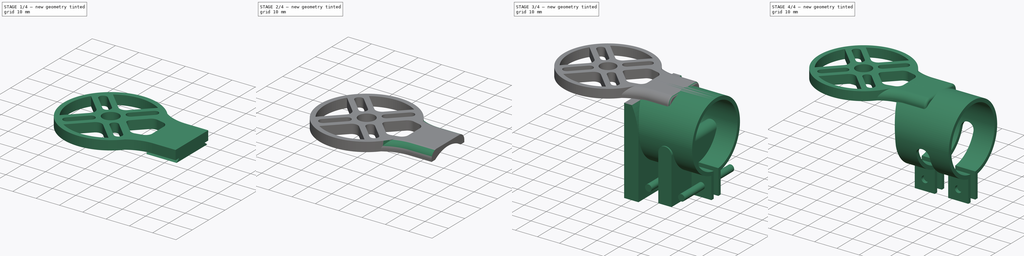
[diagram: build sequence overview — one tinted view per stage of 4, left to right]
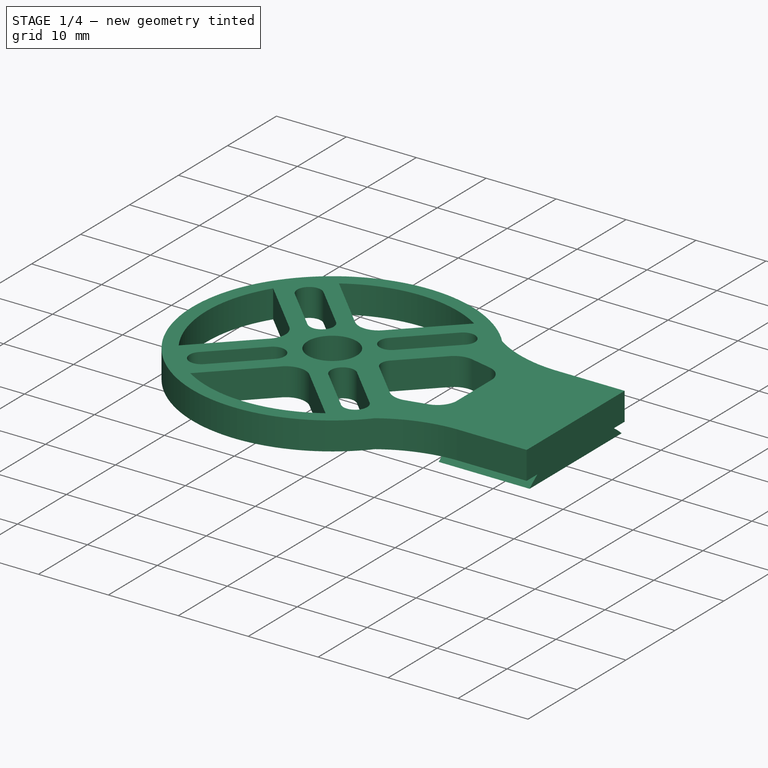
[diagram: stage 1 of 4 — iso view after this stage's code; geometry added in this stage tinted green]
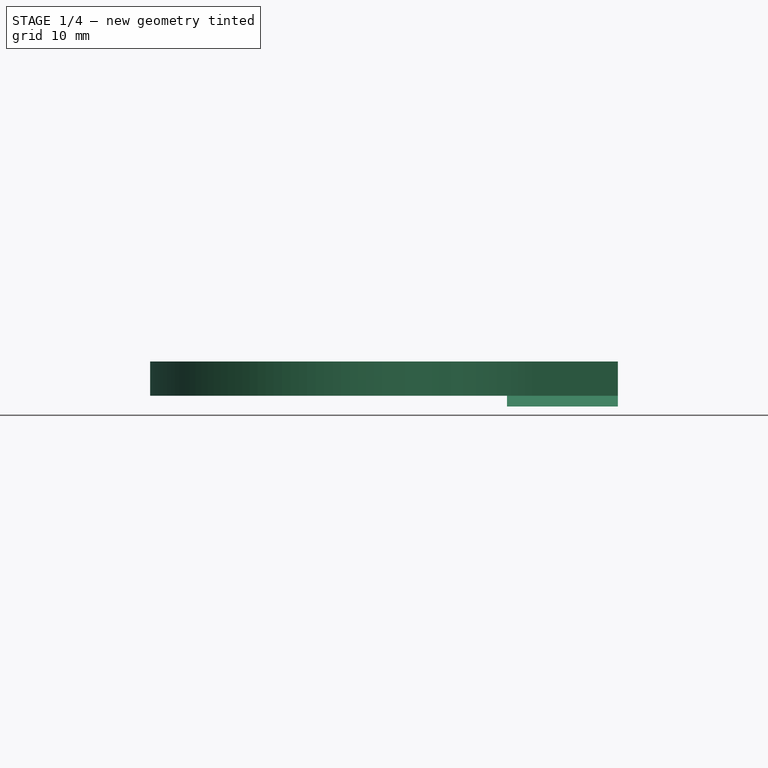
[diagram: stage 1 of 4 — front view after this stage's code; geometry added in this stage tinted green]
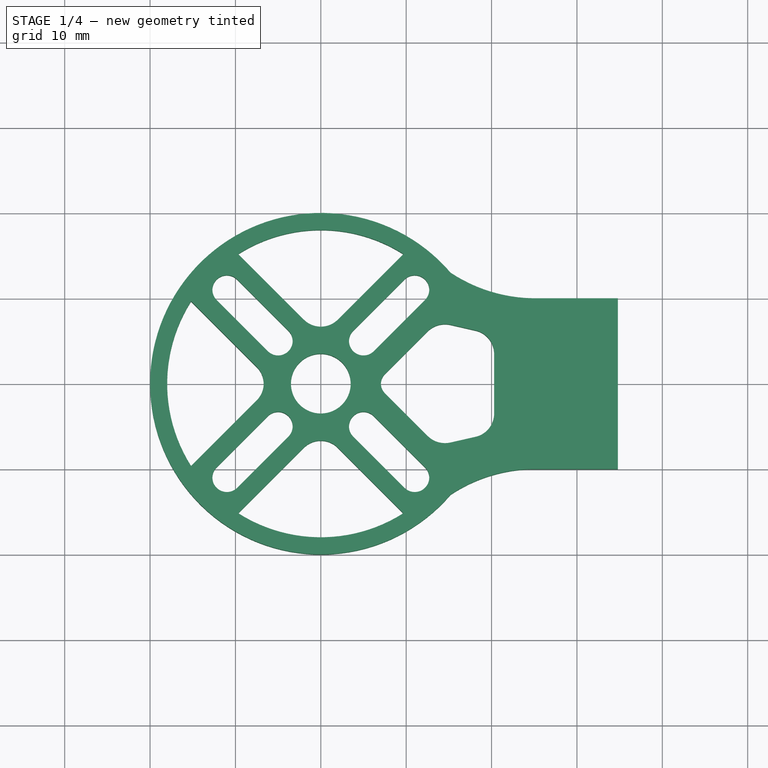
[diagram: stage 1 of 4 — top view after this stage's code; geometry added in this stage tinted green]
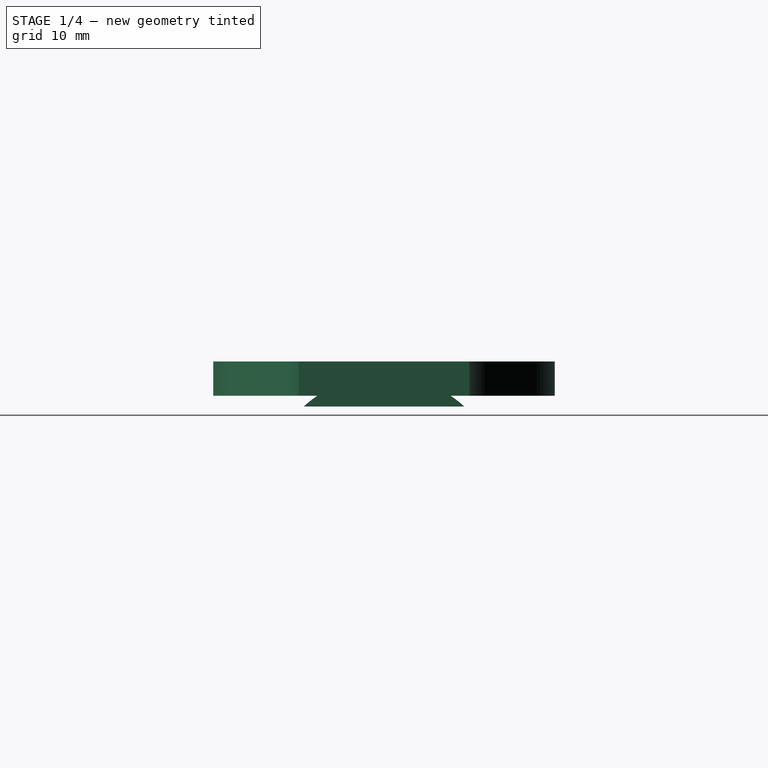
[diagram: stage 1 of 4 — right view after this stage's code; geometry added in this stage tinted green]
FCSTD DOCUMENT  (FreeCAD 0.16R6700 (Git))
Label: motor_mount
License: All rights reserved
LicenseURL: http://en.wikipedia.org/wiki/All_rights_reserved
objects: Sketcher::SketchObject×4, Part::Extrusion×4, Part::Cut×2, Part::Fillet×2, Part::MultiFuse×1
note: 13 computed .brp shape members not serialized (recipe doc carries the construction recipe); baked Part::Feature solids carry a one-line shape summary decoded from their .brp

FEATURE [Sketcher::SketchObject] Sketch002  label="Cutout_Sketch"
  Placement = pos=(34.8013,0,0) rot=(0.57735,0.57735,0.57735;2.0944rad)
  sketch-geometry (3):
    g0: LineSegment [constr] StartX=0 StartY=4 StartZ=0 EndX=0 EndY=-11.5 EndZ=0
    g1: ArcOfCircle CenterX=0 CenterY=-11.5 CenterZ=0 NormalX=0 NormalY=0 NormalZ=1 Radius=13.9 StartAngle=0.828429 EndAngle=2.31316
    g2: LineSegment StartX=-9.39688 StartY=-1.2575 StartZ=0 EndX=9.39688 EndY=-1.2575 EndZ=0
  constraints (9):
    c: PointOnObject(g0,g-2)
    c: Vertical(g0)
    c: Distance(g0) = 15.5
    c: Coincident(g1,g0)
    c: Symmetric(g1,g1,g0)
    c: Radius(g1) = 13.9
    c: Coincident(g2,g1)
    c: Coincident(g2,g1)
    c: DistanceY(g0,g-1) = 11.5
FEATURE [Part::Extrusion] Extrude  label="Motor_Base_Extrude"
  Base = -> Sketch
  Dir = (0,0,4)
  Solid = true
FEATURE [Part::Extrusion] Extrude003  label="Cutout_Extrude"
  Base = -> Sketch002
  Dir = (-13,0,0)
  Solid = true
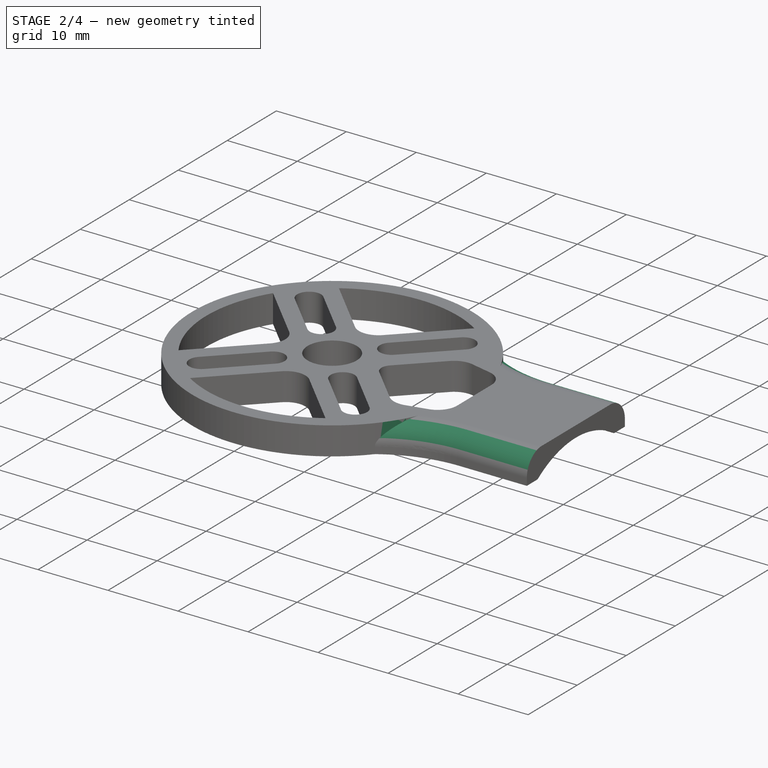
[diagram: stage 2 of 4 — iso view after this stage's code; geometry added in this stage tinted green]
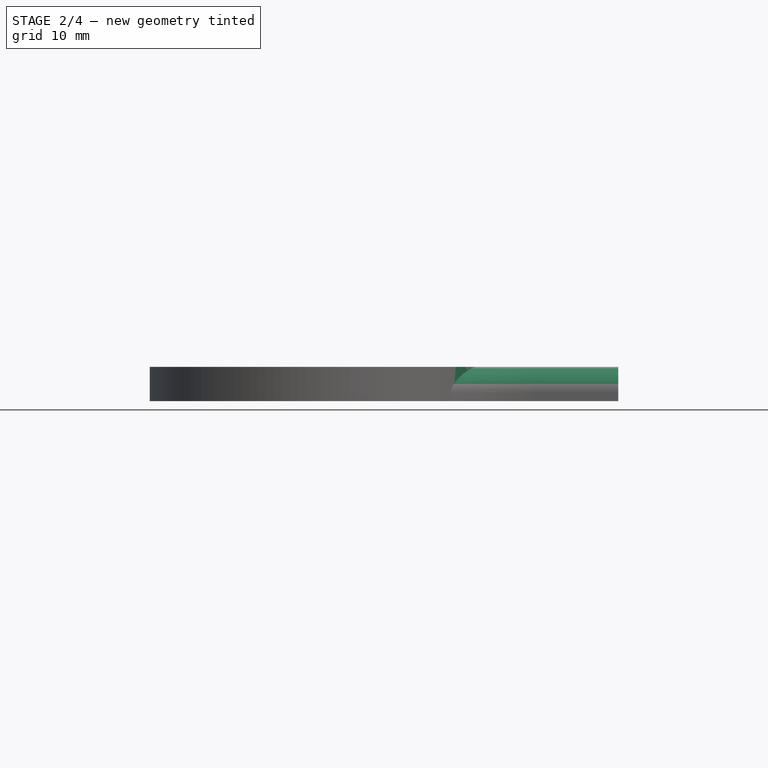
[diagram: stage 2 of 4 — front view after this stage's code; geometry added in this stage tinted green]
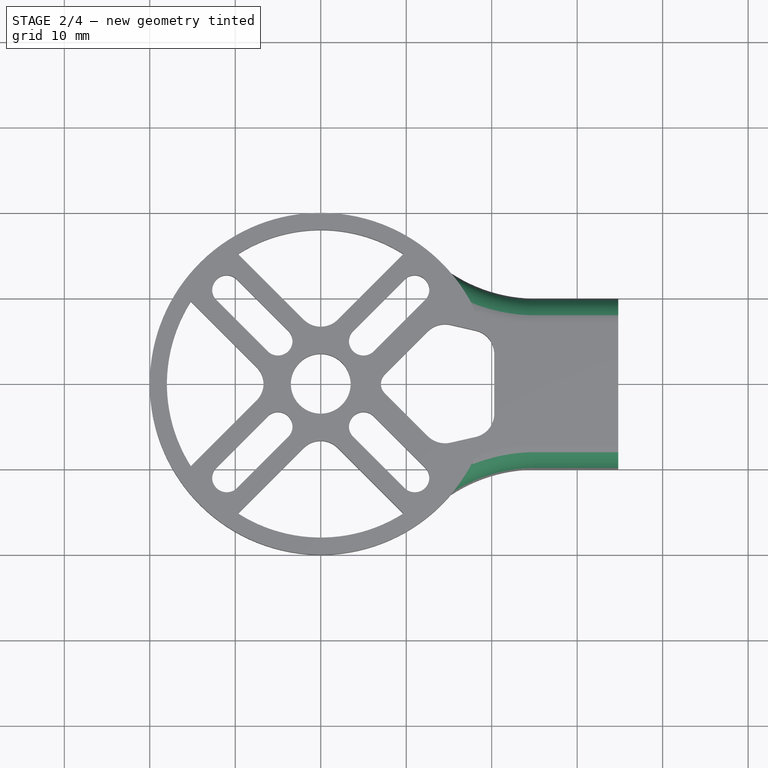
[diagram: stage 2 of 4 — top view after this stage's code; geometry added in this stage tinted green]
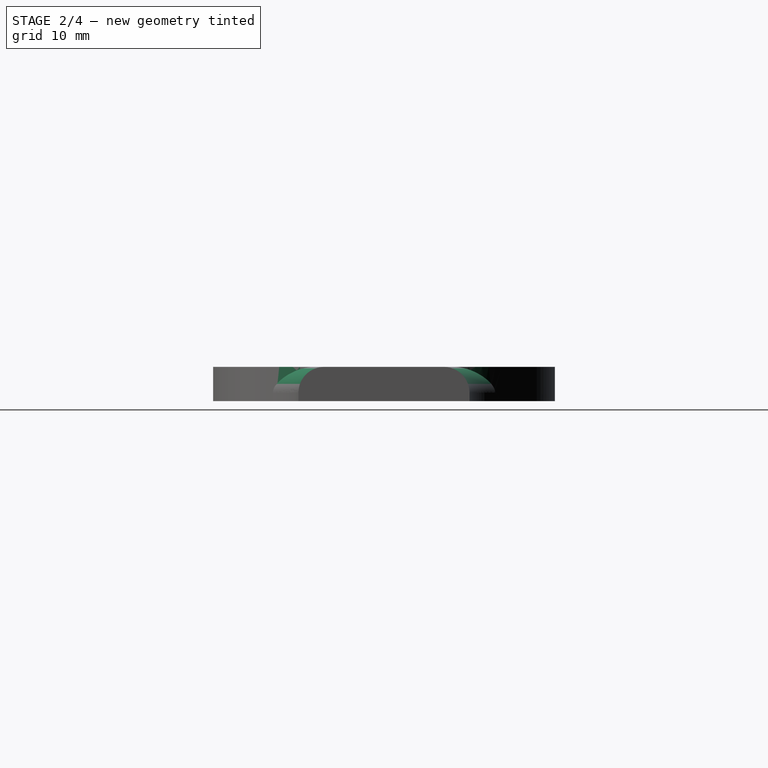
[diagram: stage 2 of 4 — right view after this stage's code; geometry added in this stage tinted green]
FEATURE [Part::Cut] Cut  label="Motor_Base_Cut"
  Base = -> Extrude
  Tool = -> Extrude003
FEATURE [Part::Fillet] Fillet
  Base = -> Cut
  Edges = 2 edges r=3: [Edge57,Edge59]
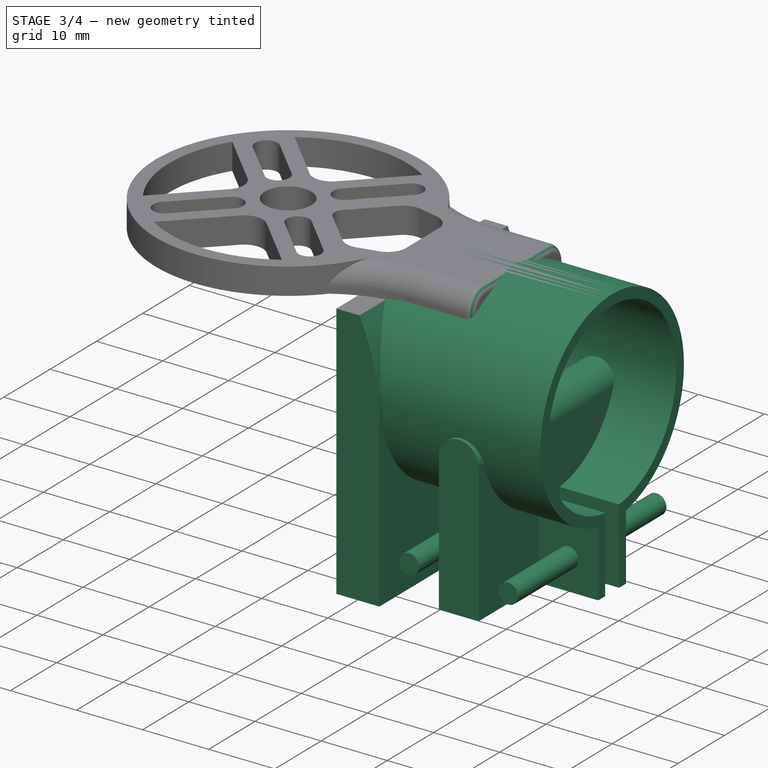
[diagram: stage 3 of 4 — iso view after this stage's code; geometry added in this stage tinted green]
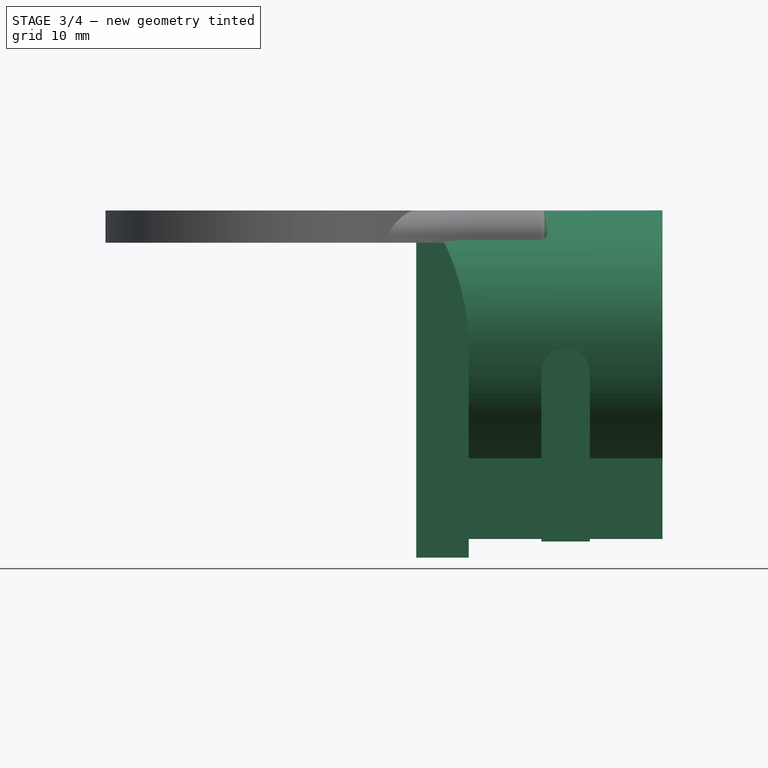
[diagram: stage 3 of 4 — front view after this stage's code; geometry added in this stage tinted green]
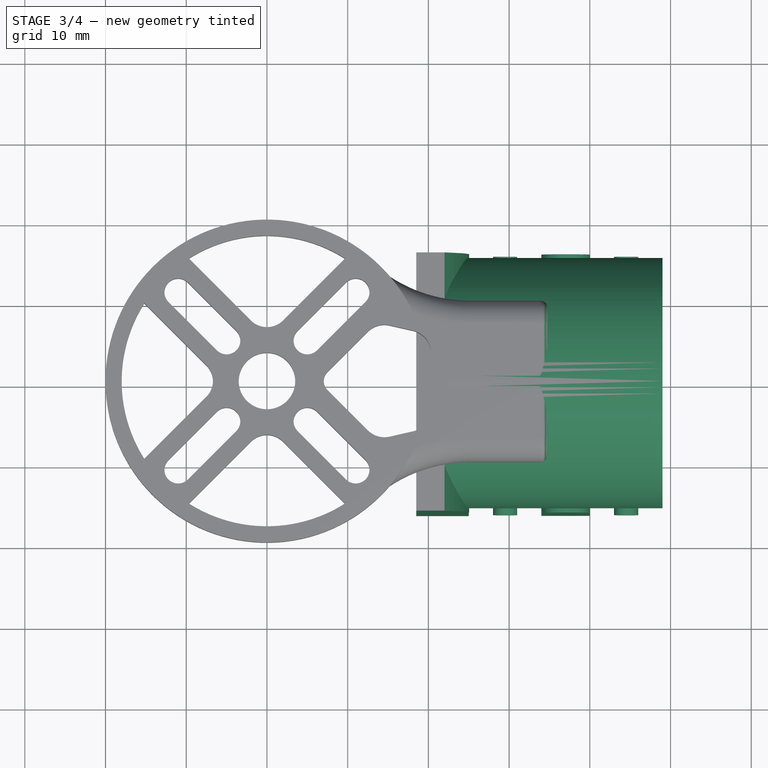
[diagram: stage 3 of 4 — top view after this stage's code; geometry added in this stage tinted green]
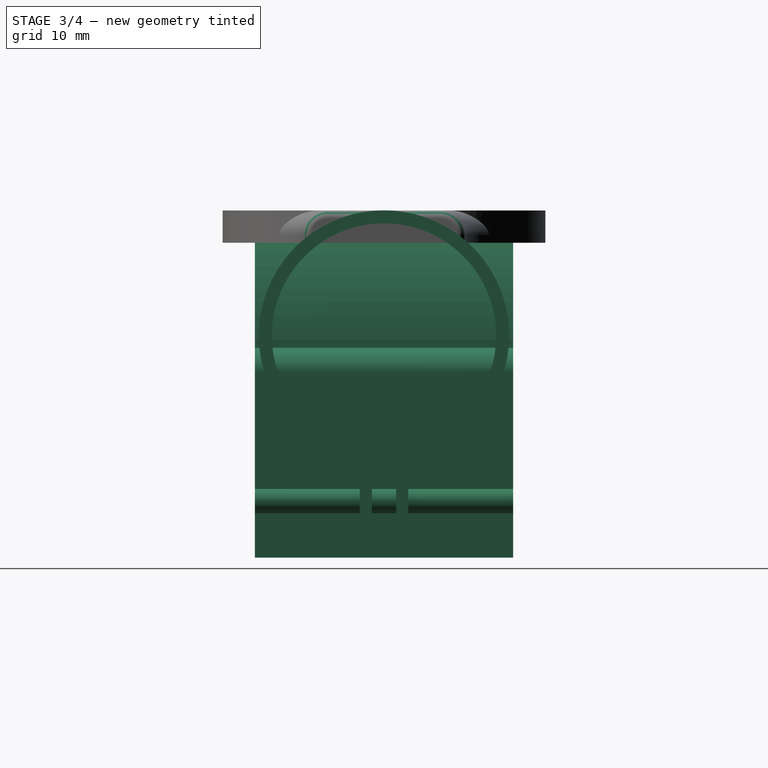
[diagram: stage 3 of 4 — right view after this stage's code; geometry added in this stage tinted green]
FEATURE [Sketcher::SketchObject] Sketch  label="Motor_Base_Sketch"
  sketch-geometry (62):
    g0: LineSegment [constr] StartX=-11 StartY=11 StartZ=0 EndX=11 EndY=11 EndZ=0
    g1: LineSegment [constr] StartX=11 StartY=11 StartZ=0 EndX=11 EndY=-11 EndZ=0
    g2: LineSegment [constr] StartX=11 StartY=-11 StartZ=0 EndX=-11 EndY=-11 EndZ=0
    g3: LineSegment [constr] StartX=-11 StartY=-11 StartZ=0 EndX=-11 EndY=11 EndZ=0
    g4: LineSegment [constr] StartX=-5 StartY=5 StartZ=0 EndX=5 EndY=5 EndZ=0
    g5: LineSegment [constr] StartX=5 StartY=5 StartZ=0 EndX=5 EndY=-5 EndZ=0
    g6: LineSegment [constr] StartX=5 StartY=-5 StartZ=0 EndX=-5 EndY=-5 EndZ=0
    g7: LineSegment [constr] StartX=-5 StartY=-5 StartZ=0 EndX=-5 EndY=5 EndZ=0
    g8: ArcOfCircle CenterX=5 CenterY=5 CenterZ=0 NormalX=0 NormalY=0 NormalZ=1 Radius=1.7 StartAngle=2.35619 EndAngle=5.49779
    g9: ArcOfCircle CenterX=11 CenterY=11 CenterZ=0 NormalX=0 NormalY=0 NormalZ=1 Radius=1.7 StartAngle=5.49779 EndAngle=8.63938
    g10: LineSegment StartX=6.20208 StartY=3.79792 StartZ=0 EndX=12.2021 EndY=9.79792 EndZ=0
    g11: LineSegment StartX=3.79792 StartY=6.20208 StartZ=0 EndX=9.79792 EndY=12.2021 EndZ=0
    g12: ArcOfCircle CenterX=-5 CenterY=5 CenterZ=0 NormalX=0 NormalY=0 NormalZ=1 Radius=1.7 StartAngle=3.92699 EndAngle=7.06858
    g13: ArcOfCircle CenterX=-11 CenterY=11 CenterZ=0 NormalX=0 NormalY=0 NormalZ=1 Radius=1.7 StartAngle=0.785398 EndAngle=3.92699
    g14: LineSegment StartX=-3.79792 StartY=6.20208 StartZ=0 EndX=-9.79792 EndY=12.2021 EndZ=0
    g15: LineSegment StartX=-6.20208 StartY=3.79792 StartZ=0 EndX=-12.2021 EndY=9.79792 EndZ=0
    g16: ArcOfCircle CenterX=-5 CenterY=-5 CenterZ=0 NormalX=0 NormalY=0 NormalZ=1 Radius=1.7 StartAngle=5.49779 EndAngle=8.63938
    g17: ArcOfCircle CenterX=-11 CenterY=-11 CenterZ=0 NormalX=0 NormalY=0 NormalZ=1 Radius=1.7 StartAngle=2.35619 EndAngle=5.49779
    g18: LineSegment StartX=-6.20208 StartY=-3.79792 StartZ=0 EndX=-12.2021 EndY=-9.79792 EndZ=0
    g19: LineSegment StartX=-3.79792 StartY=-6.20208 StartZ=0 EndX=-9.79792 EndY=-12.2021 EndZ=0
    g20: ArcOfCircle CenterX=5 CenterY=-5 CenterZ=0 NormalX=0 NormalY=0 NormalZ=1 Radius=1.7 StartAngle=0.785398 EndAngle=3.92699
    g21: ArcOfCircle CenterX=11 CenterY=-11 CenterZ=0 NormalX=0 NormalY=0 NormalZ=1 Radius=1.7 StartAngle=3.92699 EndAngle=7.06858
    g22: LineSegment StartX=3.79792 StartY=-6.20208 StartZ=0 EndX=9.79792 EndY=-12.2021 EndZ=0
    g23: LineSegment StartX=6.20208 StartY=-3.79792 StartZ=0 EndX=12.2021 EndY=-9.79792 EndZ=0
    g24: Circle CenterX=0 CenterY=0 CenterZ=0 NormalX=0 NormalY=0 NormalZ=1 Radius=3.5
    g25: LineSegment StartX=-15.1987 StartY=9.64365 StartZ=0 EndX=-7.5 EndY=1.94497 EndZ=0
    g26: LineSegment StartX=-15.1987 StartY=-9.64365 StartZ=0 EndX=-7.5 EndY=-1.94497 EndZ=0
    g27: ArcOfCircle CenterX=-9.44497 CenterY=0 CenterZ=0 NormalX=0 NormalY=0 NormalZ=1 Radius=2.7506 StartAngle=5.49779 EndAngle=7.06858
    g28: LineSegment [constr] StartX=-7.5 StartY=7.5 StartZ=0 EndX=7.5 EndY=7.5 EndZ=0
    g29: LineSegment [constr] StartX=7.5 StartY=7.5 StartZ=0 EndX=7.5 EndY=-7.5 EndZ=0
    g30: LineSegment [constr] StartX=7.5 StartY=-7.5 StartZ=0 EndX=-7.5 EndY=-7.5 EndZ=0
    g31: LineSegment [constr] StartX=-7.5 StartY=-7.5 StartZ=0 EndX=-7.5 EndY=7.5 EndZ=0
    g32: LineSegment [constr] StartX=-15.1987 StartY=13 StartZ=0 EndX=24.8013 EndY=13 EndZ=0
    g33: LineSegment [constr] StartX=24.8013 StartY=-13 StartZ=0 EndX=-15.1987 EndY=-13 EndZ=0
    g34: LineSegment [constr] StartX=-15.1987 StartY=-13 StartZ=0 EndX=-15.1987 EndY=13 EndZ=0
    g35: ArcOfCircle CenterX=0 CenterY=0 CenterZ=0 NormalX=0 NormalY=0 NormalZ=1 Radius=20 StartAngle=0.707584 EndAngle=5.5756
    g36: ArcOfCircle CenterX=0 CenterY=0 CenterZ=0 NormalX=0 NormalY=0 NormalZ=1 Radius=18 StartAngle=2.57619 EndAngle=3.707
    g37: ArcOfCircle CenterX=25.1538 CenterY=27.9965 CenterZ=0 NormalX=0 NormalY=0 NormalZ=1 Radius=18 StartAngle=4.12636 EndAngle=4.69281
    g38: ArcOfCircle CenterX=25.1538 CenterY=-27.9965 CenterZ=0 NormalX=0 NormalY=0 NormalZ=1 Radius=18 StartAngle=1.59038 EndAngle=2.15683
    g39: LineSegment [constr] StartX=24.8013 StartY=13 StartZ=0 EndX=24.8013 EndY=-13 EndZ=0
    g40: LineSegment StartX=24.8013 StartY=10 StartZ=0 EndX=34.8013 EndY=10 EndZ=0
    g41: LineSegment StartX=34.8013 StartY=10 StartZ=0 EndX=34.8013 EndY=-10 EndZ=0
    g42: LineSegment StartX=34.8013 StartY=-10 StartZ=0 EndX=24.8013 EndY=-10 EndZ=0
    g43: ArcOfCircle CenterX=0 CenterY=0 CenterZ=0 NormalX=0 NormalY=0 NormalZ=1 Radius=18 StartAngle=4.14516 EndAngle=5.27962
    g44: LineSegment StartX=-9.67139 StartY=-15.181 StartZ=0 EndX=-1.99035 EndY=-7.5 EndZ=0
    g45: LineSegment StartX=9.67139 StartY=-15.181 StartZ=0 EndX=1.99035 EndY=-7.5 EndZ=0
    g46: ArcOfCircle CenterX=0 CenterY=-9.49035 CenterZ=0 NormalX=0 NormalY=0 NormalZ=1 Radius=2.81478 StartAngle=0.785398 EndAngle=2.35619
    g47: ArcOfCircle CenterX=0 CenterY=0 CenterZ=0 NormalX=0 NormalY=0 NormalZ=1 Radius=18 StartAngle=1.00356 EndAngle=2.13803
    g48: LineSegment StartX=-9.67139 StartY=15.181 StartZ=0 EndX=-1.99035 EndY=7.5 EndZ=0
    g49: LineSegment StartX=9.67139 StartY=15.181 StartZ=0 EndX=1.99035 EndY=7.5 EndZ=0
    g50: ArcOfCircle CenterX=0 CenterY=9.49035 CenterZ=0 NormalX=0 NormalY=0 NormalZ=1 Radius=2.81478 StartAngle=3.92699 EndAngle=5.49779
    g51: LineSegment StartX=7.5 StartY=1.11637 StartZ=0 EndX=12.5035 EndY=6.11989 EndZ=0
    g52: LineSegment StartX=15.1987 StartY=6.89675 StartZ=0 EndX=18.1236 EndY=6.22996 EndZ=0
    g53: LineSegment StartX=20.3013 StartY=3.5 StartZ=0 EndX=20.3013 EndY=-3.5 EndZ=0
    g54: LineSegment StartX=18.1236 StartY=-6.22996 StartZ=0 EndX=15.1987 EndY=-6.89675 EndZ=0
    g55: LineSegment StartX=12.5035 StartY=-6.11989 StartZ=0 EndX=7.5 EndY=-1.11637 EndZ=0
    g56: LineSegment [constr] StartX=15.1987 StartY=13 StartZ=0 EndX=15.1987 EndY=-13 EndZ=0
    g57: ArcOfCircle CenterX=8.61637 CenterY=0 CenterZ=0 NormalX=0 NormalY=0 NormalZ=1 Radius=1.57879 StartAngle=2.35619 EndAngle=3.92699
    g58: ArcOfCircle CenterX=14.5541 CenterY=4.06928 CenterZ=0 NormalX=0 NormalY=0 NormalZ=1 Radius=2.9 StartAngle=1.34666 EndAngle=2.35619
    g59: ArcOfCircle CenterX=17.5013 CenterY=3.5 CenterZ=0 NormalX=0 NormalY=0 NormalZ=1 Radius=2.8 StartAngle=0 EndAngle=1.34666
    g60: ArcOfCircle CenterX=17.5013 CenterY=-3.5 CenterZ=0 NormalX=0 NormalY=0 NormalZ=1 Radius=2.8 StartAngle=4.93652 EndAngle=6.28319
    g61: ArcOfCircle CenterX=14.5541 CenterY=-4.06928 CenterZ=0 NormalX=0 NormalY=0 NormalZ=1 Radius=2.9 StartAngle=3.92699 EndAngle=4.93652
  constraints (158):
    c: Coincident(g0,g1)
    c: Coincident(g1,g2)
    c: Coincident(g2,g3)
    c: Coincident(g3,g0)
    c: Horizontal(g0)
    c: Horizontal(g2)
    c: Vertical(g1)
    c: Vertical(g3)
    c: Coincident(g4,g5)
    c: Coincident(g5,g6)
    c: Coincident(g6,g7)
    c: Coincident(g7,g4)
    c: Horizontal(g4)
    c: Horizontal(g6)
    c: Vertical(g5)
    c: Vertical(g7)
    c: Tangent(g8,g11) = 1.5708
    c: Tangent(g8,g10) = -1.5708
    c: Tangent(g10,g9) = -1.5708
    c: Tangent(g11,g9) = 1.5708
    c: Equal(g8,g9)
    c: Coincident(g8,g4)
    c: Coincident(g9,g0)
    c: Tangent(g12,g15) = 1.5708
    c: Tangent(g12,g14) = -1.5708
    c: Tangent(g14,g13) = -1.5708
    c: Tangent(g15,g13) = 1.5708
    c: Equal(g12,g13)
    c: Coincident(g12,g4)
    c: Coincident(g13,g0)
    c: Tangent(g16,g19) = 1.5708
    c: Tangent(g16,g18) = -1.5708
    c: Tangent(g18,g17) = -1.5708
    c: Tangent(g19,g17) = 1.5708
    c: Equal(g16,g17)
    c: Coincident(g16,g6)
    c: Coincident(g17,g2)
    c: Equal(g12,g16)
    c: Equal(g16,g8)
    c: Tangent(g20,g23) = 1.5708
    c: Tangent(g20,g22) = -1.5708
    c: Tangent(g22,g21) = -1.5708
    c: Tangent(g23,g21) = 1.5708
    c: Equal(g20,g21)
    c: Coincident(g20,g5)
    c: Coincident(g21,g1)
    c: Equal(g20,g16)
    c: Radius(g21) = 1.7
    c: Symmetric(g0,g0,g-2)
    c: Symmetric(g4,g4,g-2)
    c: Symmetric(g4,g6,g-1)
    c: Symmetric(g0,g2,g-1)
    c: Coincident(g24,g-1)
    c: Radius(g24) = 3.5
    c: Equal(g7,g4)
    c: Equal(g3,g0)
    c: Distance(g4) = 10
    c: Distance(g0) = 22
    c: Tangent(g25,g27) = 1.5708
    c: Tangent(g26,g27) = -1.5708
    c: Coincident(g28,g29)
    c: Coincident(g29,g30)
    c: Coincident(g30,g31)
    c: Coincident(g31,g28)
    c: Horizontal(g28)
    c: Horizontal(g30)
    c: Vertical(g29)
    c: Symmetric(g28,g30,g-1)
    c: Symmetric(g29,g30,g-2)
    c: Distance(g28) = 15
    c: PointOnObject(g25,g31)
    c: PointOnObject(g26,g31)
    c: Coincident(g33,g34)
    c: Coincident(g34,g32)
    c: Horizontal(g32)
    c: Horizontal(g33)
    c: Vertical(g34)
    c: PointOnObject(g27,g-1)
    c: Parallel(g26,g18)
    c: Equal(g28,g31)
    c: Coincident(g35,g-1)
    c: PointOnObject(g35,g32)
    c: PointOnObject(g35,g33)
    c: Radius(g35) = 20
    c: Coincident(g36,g-1)
    c: Symmetric(g26,g25,g-1)
    c: PointOnObject(g36,g34)
    c: Symmetric(g36,g36,g-1)
    c: PointOnObject(g32,g35)
    c: Coincident(g36,g25)
    c: Coincident(g37,g35)
    c: Radius(g37) = 18
    c: Distance(g32) = 40
    c: PointOnObject(g33,g35)
    c: DistanceY(g34,g34) = 26
    c: Radius(g36) = 18
    c: Coincident(g38,g35)
    c: Symmetric(g38,g37,g-1)
    c: Equal(g38,g37)
    c: Coincident(g39,g32)
    c: Coincident(g39,g33)
    c: Vertical(g39)
    c: PointOnObject(g37,g39)
    c: Coincident(g40,g37)
    c: Horizontal(g40)
    c: Coincident(g41,g40)
    c: Vertical(g41)
    c: Coincident(g42,g41)
    c: Coincident(g42,g38)
    c: Horizontal(g42)
    c: Distance(g42) = 10
    c: Distance(g41) = 20
    c: Symmetric(g43,g43,g-2)
    c: Radius(g43) = 18
    c: Coincident(g43,g-1)
    c: Angle(g43) = 1.13446
    c: Coincident(g44,g43)
    c: Coincident(g45,g43)
    c: Tangent(g44,g46) = 1.5708
    c: Tangent(g45,g46) = -1.5708
    c: PointOnObject(g44,g30)
    c: Parallel(g44,g19)
    c: Symmetric(g45,g44,g-2)
    c: Coincident(g47,g-1)
    c: Equal(g47,g43)
    c: Coincident(g48,g47)
    c: Coincident(g49,g47)
    c: Parallel(g48,g14)
    c: Symmetric(g47,g47,g-2)
    c: Tangent(g48,g50) = -1.5708
    c: Tangent(g49,g50) = 1.5708
    c: PointOnObject(g48,g28)
    c: Angle(g47) = 1.13446
    c: PointOnObject(g49,g28)
    c: Parallel(g55,g23)
    c: Coincident(g56,g35)
    c: Coincident(g56,g35)
    c: Tangent(g55,g57) = 1.5708
    c: Tangent(g51,g57) = 1.5708
    c: PointOnObject(g55,g29)
    c: Symmetric(g51,g55,g-1)
    c: Tangent(g51,g58) = 1.5708
    c: Tangent(g52,g58) = 1.5708
    c: Tangent(g52,g59) = 1.5708
    c: Tangent(g53,g59) = 1.5708
    c: Tangent(g53,g60) = 1.5708
    c: Tangent(g54,g60) = 1.5708
    c: Tangent(g54,g61) = 1.5708
    c: Tangent(g55,g61) = 1.5708
    c: PointOnObject(g52,g56)
    c: Symmetric(g54,g52,g-1)
    c: Symmetric(g53,g53,g-1)
    c: Distance(g53) = 7
    c: Distance(g53,g39) = 4.5
    c: Distance(g54) = 3
    c: Symmetric(g54,g52,g-1)
    c: Radius(g60) = 2.8
    c: Radius(g61) = 2.9
FEATURE [Sketcher::SketchObject] Sketch001  label="Bracket_Sketch"
  Placement = pos=(25,0,0) rot=(0.57735,0.57735,0.57735;2.0944rad)
  expr: Placement.Base.x = 25
  sketch-geometry (8):
    g0: ArcOfCircle CenterX=0 CenterY=-11.484 CenterZ=0 NormalX=0 NormalY=0 NormalZ=1 Radius=15.5 StartAngle=4.90717 EndAngle=10.8008
    g1: ArcOfCircle CenterX=0 CenterY=-11.484 CenterZ=0 NormalX=0 NormalY=0 NormalZ=1 Radius=13.9 StartAngle=4.82051 EndAngle=10.8875
    g2: LineSegment StartX=-3 StartY=-26.6909 StartZ=0 EndX=-3 EndY=-36.6909 EndZ=0
    g3: LineSegment StartX=-3 StartY=-36.6909 StartZ=0 EndX=-1.5 EndY=-36.6909 EndZ=0
    g4: LineSegment StartX=-1.5 StartY=-36.6909 StartZ=0 EndX=-1.5 EndY=-25.3028 EndZ=0
    g5: LineSegment StartX=3 StartY=-26.6909 StartZ=0 EndX=3 EndY=-36.6909 EndZ=0
    g6: LineSegment StartX=3 StartY=-36.6909 StartZ=0 EndX=1.5 EndY=-36.6909 EndZ=0
    g7: LineSegment StartX=1.5 StartY=-36.6909 StartZ=0 EndX=1.5 EndY=-25.3028 EndZ=0
  constraints (23):
    c: Symmetric(g0,g0,g-2)
    c: Radius(g0) = 15.5
    c: Coincident(g1,g0)
    c: Symmetric(g1,g1,g-2)
    c: Radius(g1) = 13.9
    c: Distance(g1,g1) = 3
    c: Distance(g0,g0) = 6
    c: Coincident(g2,g0)
    c: Vertical(g2)
    c: Coincident(g3,g2)
    c: Horizontal(g3)
    c: Coincident(g4,g3)
    c: Coincident(g4,g1)
    c: Vertical(g4)
    c: Coincident(g5,g0)
    c: Vertical(g5)
    c: Coincident(g6,g5)
    c: Horizontal(g6)
    c: Coincident(g7,g6)
    c: Coincident(g7,g1)
    c: Vertical(g7)
    c: Distance(g2) = 10
    c: Equal(g5,g2)
FEATURE [Part::Extrusion] Extrude002  label="Bracket_Cylinder"
  Base = -> Sketch001
  Dir = (27,0,0)
  Placement = pos=(-3,0,0) rot=(0,0,1;0rad)
  Solid = true
FEATURE [Sketcher::SketchObject] Sketch003  label="Bracket_Cut_Sketch"
  Placement = pos=(0,-16,0) rot=(1,0,0;1.5708rad)
  sketch-geometry (12):
    g0: LineSegment StartX=34 StartY=-37 StartZ=0 EndX=34 EndY=-16 EndZ=0
    g1: LineSegment StartX=34 StartY=-37 StartZ=0 EndX=40 EndY=-37 EndZ=0
    g2: LineSegment StartX=40 StartY=-16 StartZ=0 EndX=40 EndY=-37 EndZ=0
    g3: ArcOfCircle CenterX=37 CenterY=-16 CenterZ=0 NormalX=0 NormalY=0 NormalZ=1 Radius=3 StartAngle=0 EndAngle=3.14159
    g4: LineSegment [constr] StartX=37 StartY=-16 StartZ=0 EndX=37 EndY=-37 EndZ=0
    g5: Circle CenterX=29.5 CenterY=-32 CenterZ=0 NormalX=0 NormalY=0 NormalZ=1 Radius=1.5
    g6: Circle CenterX=44.5 CenterY=-32 CenterZ=0 NormalX=0 NormalY=0 NormalZ=1 Radius=1.5
    g7: LineSegment StartX=18.5 StartY=0 StartZ=0 EndX=18.5 EndY=-39 EndZ=0
    g8: LineSegment StartX=18.5 StartY=-39 StartZ=0 EndX=25 EndY=-39 EndZ=0
    g9: LineSegment StartX=25 StartY=-39 StartZ=0 EndX=25 EndY=-15.1896 EndZ=0
    g10: LineSegment StartX=18.5 StartY=0 StartZ=0 EndX=22 EndY=0 EndZ=0
    g11: ArcOfCircle CenterX=-6.96104 CenterY=-13.611 CenterZ=0 NormalX=0 NormalY=0 NormalZ=1 Radius=32 StartAngle=6.23383 EndAngle=6.72253
  constraints (38):
    c: Vertical(g0)
    c: DistanceX(g-1,g0) = 34
    c: Horizontal(g1)
    c: Distance(g0) = 21
    c: PointOnObject(g2,g1)
    c: Vertical(g2)
    c: Equal(g2,g0)
    c: Coincident(g3,g0)
    c: Coincident(g3,g2)
    c: Coincident(g4,g3)
    c: PointOnObject(g4,g1)
    c: Vertical(g4)
    c: Equal(g4,g0)
    c: Radius(g3) = 3
    c: Coincident(g1,g0)
    c: Coincident(g1,g2)
    c: Symmetric(g6,g5,g4)
    c: Distance(g5,g4) = 7.5
    c: Distance(g6,g1) = 5
    c: DistanceY(g4,g-1) = 37
    c: Radius(g6) = 1.5
    c: Equal(g5,g6)
    c: PointOnObject(g7,g-1)
    c: Vertical(g7)
    c: Coincident(g8,g7)
    c: Horizontal(g8)
    c: Coincident(g9,g8)
    c: Vertical(g9)
    c: Coincident(g10,g7)
    c: PointOnObject(g10,g-1)
    c: Distance(g7) = 39
    c: Distance(g8) = 6.5
    c: DistanceX(g-2,g7) = 18.5
    c: Distance(g10) = 3.5
    c: Coincident(g11,g9)
    c: Radius(g11) = 32
    c: Coincident(g11,g10)
    c: Angle(g11) = 0.488692
FEATURE [Part::Extrusion] Extrude005  label="Bracket_Cut_Extrude"
  Base = -> Sketch003
  Dir = (0,32,0)
  Solid = true
FEATURE [Part::Fillet] Fillet001
  Base = -> Fillet
  Edges = 1 edges r=1: [Edge61]
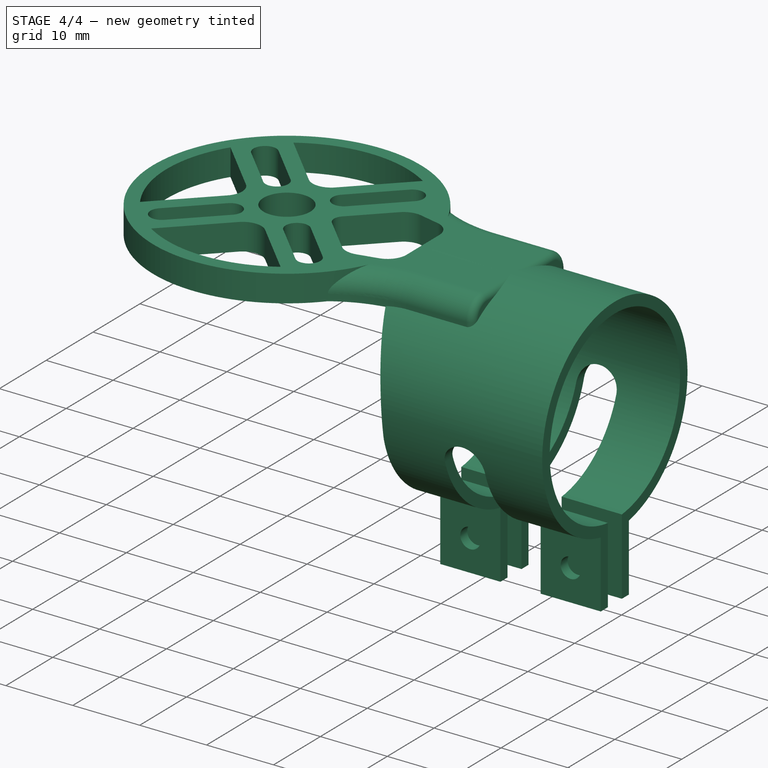
[diagram: stage 4 of 4 — iso view after this stage's code; geometry added in this stage tinted green]
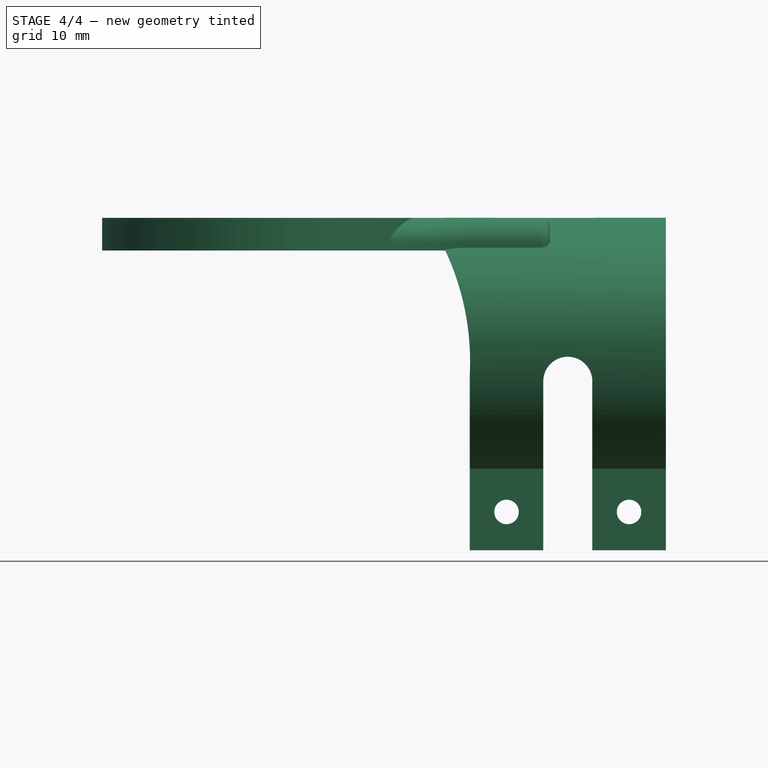
[diagram: stage 4 of 4 — front view after this stage's code; geometry added in this stage tinted green]
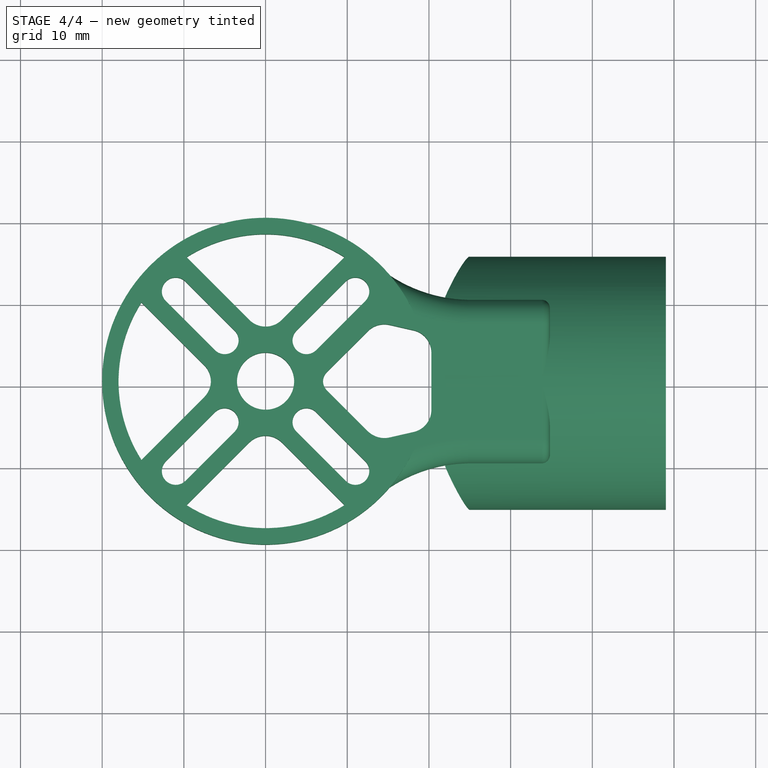
[diagram: stage 4 of 4 — top view after this stage's code; geometry added in this stage tinted green]
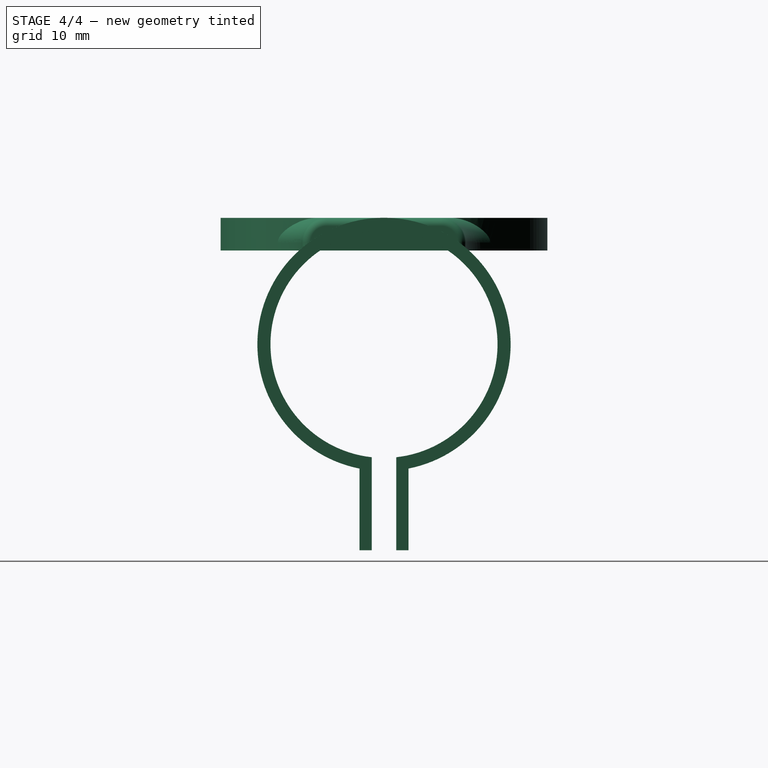
[diagram: stage 4 of 4 — right view after this stage's code; geometry added in this stage tinted green]
FEATURE [Part::Cut] Cut001  label="Bracket_Cut"
  Base = -> Extrude002
  Tool = -> Extrude005
FEATURE [Part::MultiFuse] Fusion
  Shapes = -> [Fillet001,Cut001]
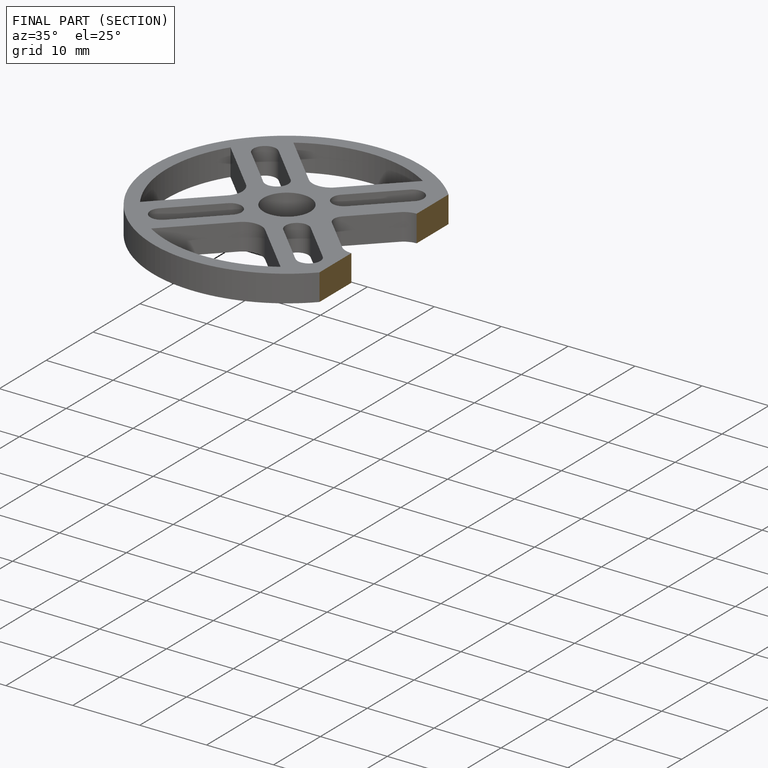
[diagram: finished part — half-section view (interior)]
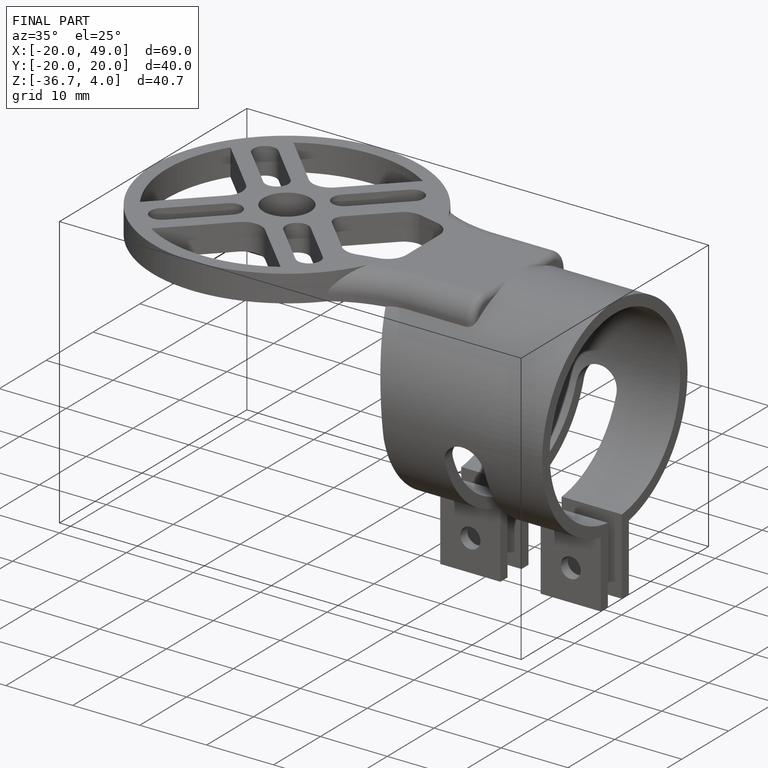
[diagram: finished part — iso view with bounding-box wireframe]
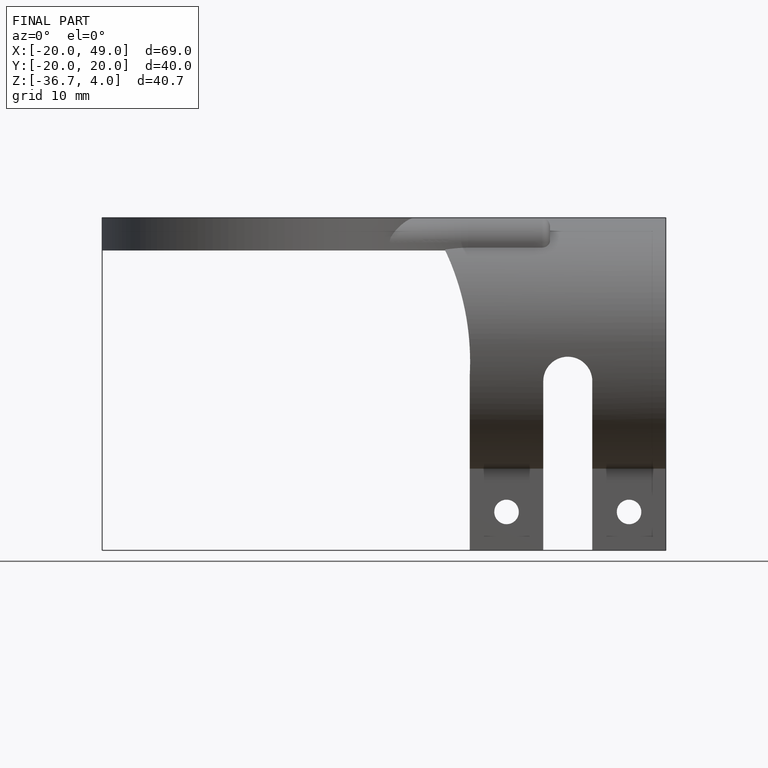
[diagram: finished part — front view with bounding-box wireframe]
